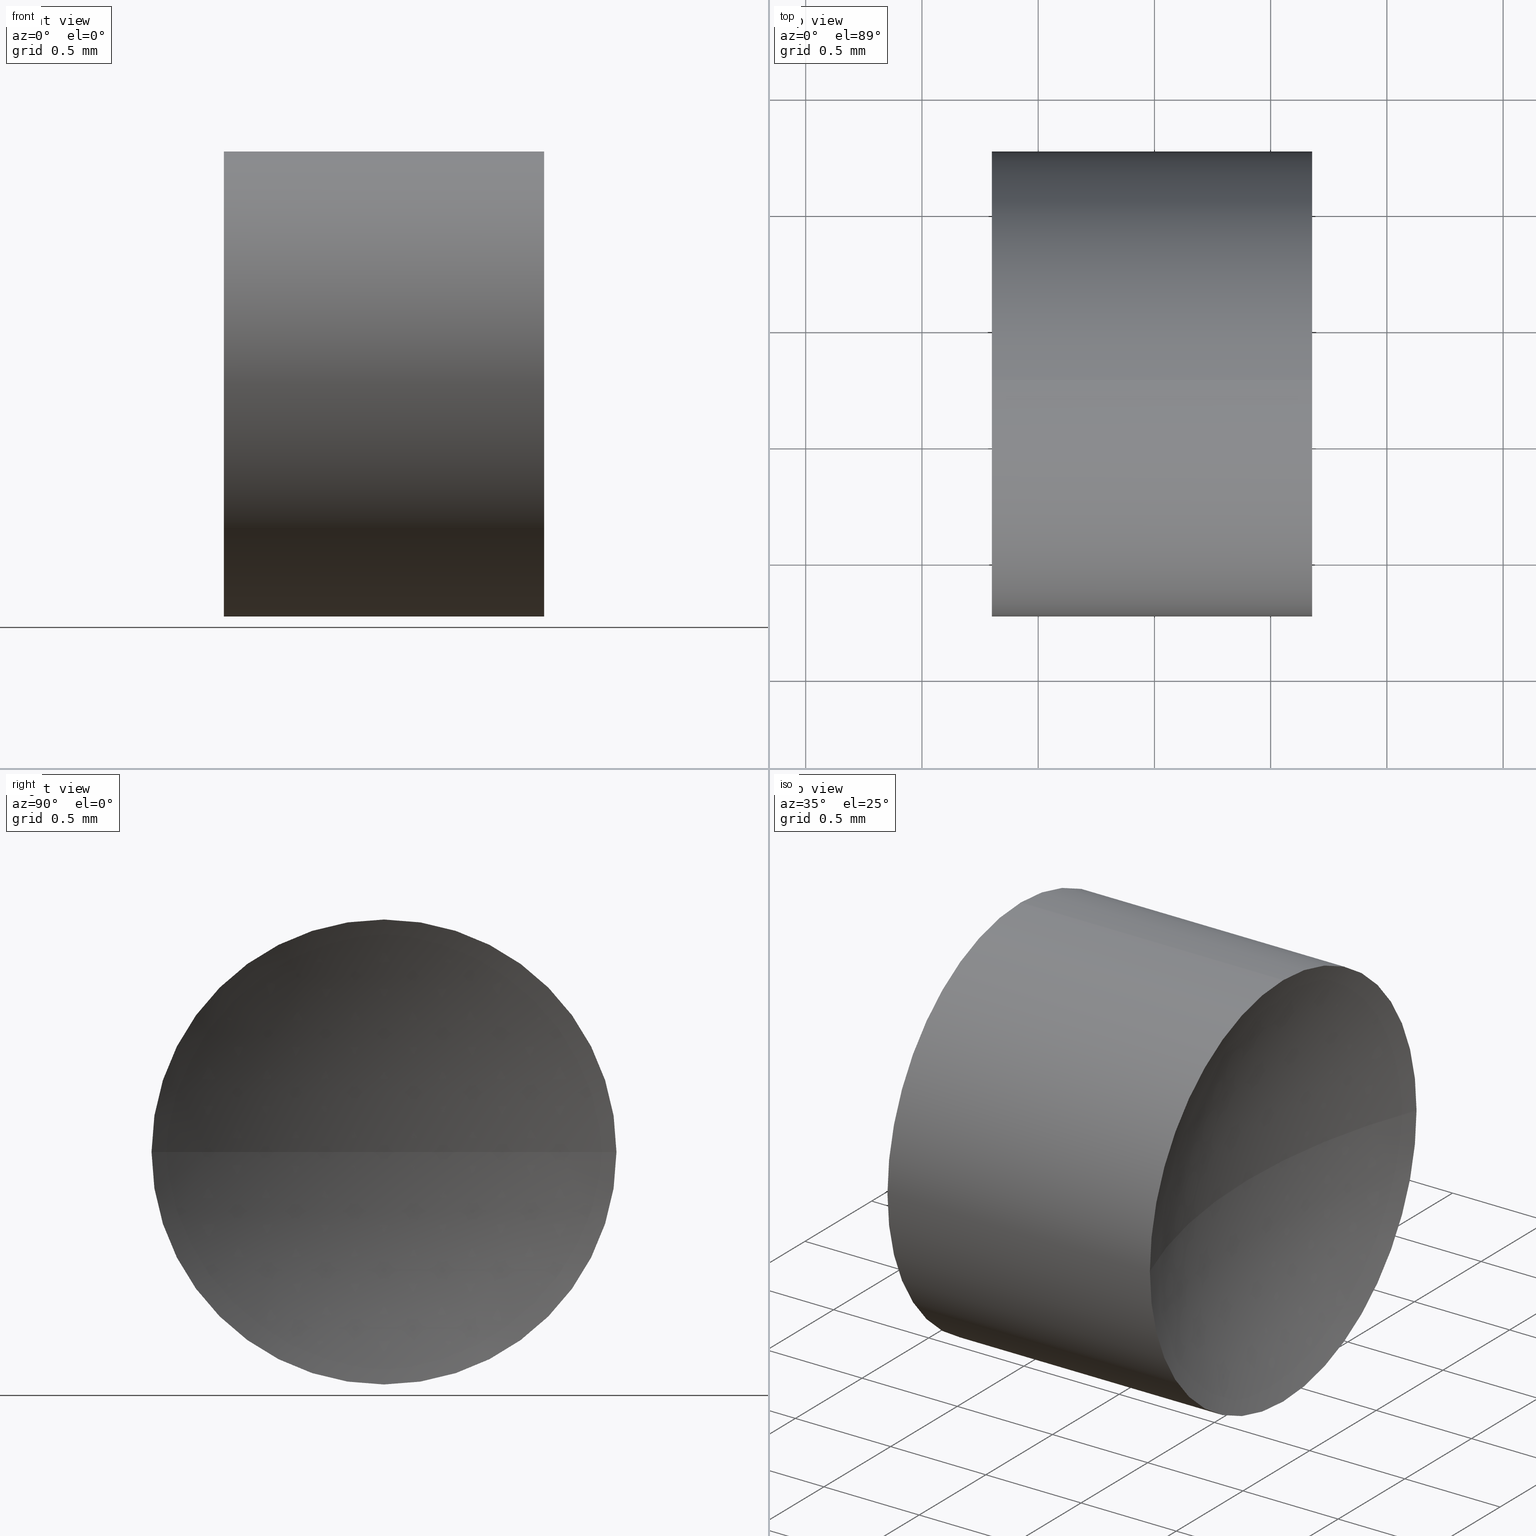
[diagram: canonical four-view strip — front | top / right | iso, engineering-drawing reading convention]
A machine part, canonical four-view strip (front | top / right | iso — engineering-drawing reading convention). The complete STEP part file that produces these views, byte-faithful:
ISO-10303-21;
HEADER;
FILE_DESCRIPTION (( 'STEP AP214' ),
    '1' );
FILE_NAME ('130001.STEP',
    '2019-06-28T01:58:39',
    ( '' ),
    ( '' ),
    'SwSTEP 2.0',
    'SolidWorks 2016',
    '' );
FILE_SCHEMA (( 'AUTOMOTIVE_DESIGN' ));
ENDSEC;

DATA;
#1 = AXIS2_PLACEMENT_3D ( 'NONE', #189, #190, #106 ) ;
#2 = VERTEX_POINT ( 'NONE', #187 ) ;
#3 = DIRECTION ( 'NONE',  ( 0.0000000000000000000, 1.000000000000000000, 0.0000000000000000000 ) ) ;
#4 = CARTESIAN_POINT ( 'NONE',  ( 2.749613268749068000, 3.261130143649369800, 0.0000000000000000000 ) ) ;
#5 = DIRECTION ( 'NONE',  ( 0.0000000000000000000, 0.0000000000000000000, -1.000000000000000000 ) ) ;
#6 = DIRECTION ( 'NONE',  ( -1.000000000000000000, -0.0000000000000000000, -0.0000000000000000000 ) ) ;
#7 = ORIENTED_EDGE ( 'NONE', *, *, #191, .T. ) ;
#8 = CARTESIAN_POINT ( 'NONE',  ( 6.678613464750645400, 3.261130143649369800, 0.0000000000000000000 ) ) ;
#9 = AXIS2_PLACEMENT_3D ( 'NONE', #38, #39, #20 ) ;
#10 = DIRECTION ( 'NONE',  ( 0.0000000000000000000, 0.0000000000000000000, 1.000000000000000000 ) ) ;
#11 = CARTESIAN_POINT ( 'NONE',  ( 9.229613268749068000, 3.261130143649370700, 0.0000000000000000000 ) ) ;
#12 = ORIENTED_EDGE ( 'NONE', *, *, #208, .F. ) ;
#13 = PRESENTATION_LAYER_ASSIGNMENT (  '', '', ( #53 ) ) ;
#14 = EDGE_LOOP ( 'NONE', ( #167, #225, #154, #50 ) ) ;
#15 = AXIS2_PLACEMENT_3D ( 'NONE', #177, #147, #77 ) ;
#16 = ORIENTED_EDGE ( 'NONE', *, *, #74, .F. ) ;
#17 = VECTOR ( 'NONE', #169, 1000.000000000000000 ) ;
#18 = DIRECTION ( 'NONE',  ( 0.0000000000000000000, 0.0000000000000000000, 1.000000000000000000 ) ) ;
#19 = CARTESIAN_POINT ( 'NONE',  ( 6.678613464750645400, 2.261130143649369400, 0.0000000000000000000 ) ) ;
#20 = DIRECTION ( 'NONE',  ( -1.000000000000000000, 0.0000000000000000000, 0.0000000000000000000 ) ) ;
#21 = MECHANICAL_DESIGN_GEOMETRIC_PRESENTATION_REPRESENTATION (  '', ( #53 ), #49 ) ;
#22 = CIRCLE ( 'NONE', #194, 2.739999999999997500 ) ;
#23 =( NAMED_UNIT ( * ) PLANE_ANGLE_UNIT ( ) SI_UNIT ( $, .RADIAN. ) );
#24 =( LENGTH_UNIT ( ) NAMED_UNIT ( * ) SI_UNIT ( .MILLI., .METRE. ) );
#25 = DIRECTION ( 'NONE',  ( -1.000000000000000000, -0.0000000000000000000, -0.0000000000000000000 ) ) ;
#26 = DIRECTION ( 'NONE',  ( 1.000000000000000000, 0.0000000000000000000, 0.0000000000000000000 ) ) ;
#27 = ORIENTED_EDGE ( 'NONE', *, *, #123, .F. ) ;
#28 = APPLICATION_CONTEXT ( 'automotive_design' ) ;
#29 = PRESENTATION_STYLE_ASSIGNMENT (( #195 ) ) ;
#30 = ORIENTED_EDGE ( 'NONE', *, *, #200, .F. ) ;
#31 = ADVANCED_FACE ( 'NONE', ( #157 ), #85, .T. ) ;
#32 = FACE_OUTER_BOUND ( 'NONE', #91, .T. ) ;
#33 = EDGE_CURVE ( 'NONE', #142, #37, #76, .T. ) ;
#34 = EDGE_LOOP ( 'NONE', ( #27, #61, #114, #104 ) ) ;
#35 = AXIS2_PLACEMENT_3D ( 'NONE', #4, #215, #108 ) ;
#36 = DIRECTION ( 'NONE',  ( -1.000000000000000000, -0.0000000000000000000, -0.0000000000000000000 ) ) ;
#37 = VERTEX_POINT ( 'NONE', #72 ) ;
#38 = CARTESIAN_POINT ( 'NONE',  ( 9.229613268749068000, 3.261130143649370700, 0.0000000000000000000 ) ) ;
#39 = DIRECTION ( 'NONE',  ( 0.0000000000000000000, 0.0000000000000000000, -1.000000000000000000 ) ) ;
#40 = CARTESIAN_POINT ( 'NONE',  ( 2.749613268749068000, 3.261130143649369800, 0.0000000000000000000 ) ) ;
#41 = APPLICATION_PROTOCOL_DEFINITION ( 'draft international standard', 'automotive_design', 1998, #28 ) ;
#42 = DIRECTION ( 'NONE',  ( -1.000000000000000000, -0.0000000000000000000, -0.0000000000000000000 ) ) ;
#43 = CARTESIAN_POINT ( 'NONE',  ( 0.0000000000000000000, 0.0000000000000000000, 0.0000000000000000000 ) ) ;
#44 = EDGE_CURVE ( 'NONE', #37, #2, #206, .T. ) ;
#45 =( NAMED_UNIT ( * ) PLANE_ANGLE_UNIT ( ) SI_UNIT ( $, .RADIAN. ) );
#46 = FILL_AREA_STYLE ('',( #132 ) ) ;
#47 = CARTESIAN_POINT ( 'NONE',  ( 5.306232639267102900, 3.261130143649369800, 1.000000000000000400 ) ) ;
#48 = SPHERICAL_SURFACE ( 'NONE', #140, 2.739999999999997500 ) ;
#49 =( GEOMETRIC_REPRESENTATION_CONTEXT ( 3 ) GLOBAL_UNCERTAINTY_ASSIGNED_CONTEXT ( ( #203 ) ) GLOBAL_UNIT_ASSIGNED_CONTEXT ( ( #176, #23, #109 ) ) REPRESENTATION_CONTEXT ( 'NONE', 'WORKASPACE' ) );
#50 = ORIENTED_EDGE ( 'NONE', *, *, #44, .T. ) ;
#51 =( GEOMETRIC_REPRESENTATION_CONTEXT ( 3 ) GLOBAL_UNCERTAINTY_ASSIGNED_CONTEXT ( ( #79 ) ) GLOBAL_UNIT_ASSIGNED_CONTEXT ( ( #64, #96, #129 ) ) REPRESENTATION_CONTEXT ( 'NONE', 'WORKASPACE' ) );
#52 = ADVANCED_FACE ( 'NONE', ( #32 ), #126, .F. ) ;
#53 = STYLED_ITEM ( 'NONE', ( #29 ), #63 ) ;
#54 = ORIENTED_EDGE ( 'NONE', *, *, #200, .T. ) ;
#55 = EDGE_CURVE ( 'NONE', #100, #184, #161, .T. ) ;
#56 = CLOSED_SHELL ( 'NONE', ( #31, #102, #226, #69, #52, #171 ) ) ;
#57 = STYLED_ITEM ( 'NONE', ( #207 ), #178 ) ;
#58 = CARTESIAN_POINT ( 'NONE',  ( 6.678613464750645400, 3.261130143649369800, -1.000000000000001300 ) ) ;
#59 = EDGE_CURVE ( 'NONE', #145, #2, #201, .T. ) ;
#60 = CARTESIAN_POINT ( 'NONE',  ( 5.300613072747492700, 3.261130143649369800, 0.0000000000000000000 ) ) ;
#61 = ORIENTED_EDGE ( 'NONE', *, *, #59, .T. ) ;
#62 = DIRECTION ( 'NONE',  ( 1.000000000000000000, 0.0000000000000000000, 0.0000000000000000000 ) ) ;
#63 = MANIFOLD_SOLID_BREP ( '��ת1', #56 ) ;
#64 =( LENGTH_UNIT ( ) NAMED_UNIT ( * ) SI_UNIT ( .MILLI., .METRE. ) );
#65 = SHAPE_DEFINITION_REPRESENTATION ( #93, #178 ) ;
#66 = PRODUCT_DEFINITION ( 'δ֪', '', #231, #141 ) ;
#67 = COLOUR_RGB ( '',1.000000000000000000, 1.000000000000000000, 1.000000000000000000 ) ;
#68 = LINE ( 'NONE', #47, #17 ) ;
#69 = ADVANCED_FACE ( 'NONE', ( #83 ), #170, .F. ) ;
#70 = ORIENTED_EDGE ( 'NONE', *, *, #228, .F. ) ;
#71 = ORIENTED_EDGE ( 'NONE', *, *, #228, .T. ) ;
#72 = CARTESIAN_POINT ( 'NONE',  ( 5.300613072747492700, 3.261130143649369800, -1.000000000000000400 ) ) ;
#73 = CARTESIAN_POINT ( 'NONE',  ( 2.749613268749068000, 3.261130143649369800, 0.0000000000000000000 ) ) ;
#74 = EDGE_CURVE ( 'NONE', #100, #175, #214, .T. ) ;
#75 = COLOUR_RGB ( '',1.000000000000000000, 1.000000000000000000, 1.000000000000000000 ) ;
#76 = CIRCLE ( 'NONE', #1, 1.000000000000000400 ) ;
#77 = DIRECTION ( 'NONE',  ( 0.0000000000000000000, 0.0000000000000000000, 1.000000000000000000 ) ) ;
#78 = DIRECTION ( 'NONE',  ( -1.000000000000000000, -0.0000000000000000000, -0.0000000000000000000 ) ) ;
#79 = UNCERTAINTY_MEASURE_WITH_UNIT (LENGTH_MEASURE( 1.000000000000000100E-005 ), #64, 'distance_accuracy_value', 'NONE');
#80 = CARTESIAN_POINT ( 'NONE',  ( 6.678613464750645400, 3.261130143649369800, 0.0000000000000000000 ) ) ;
#81 = DIRECTION ( 'NONE',  ( 0.0000000000000000000, -1.000000000000000000, -1.224646799147353200E-016 ) ) ;
#82 = VERTEX_POINT ( 'NONE', #94 ) ;
#83 = FACE_OUTER_BOUND ( 'NONE', #14, .T. ) ;
#84 = PRODUCT_RELATED_PRODUCT_CATEGORY ( 'part', '', ( #139 ) ) ;
#85 = CYLINDRICAL_SURFACE ( 'NONE', #174, 1.000000000000000400 ) ;
#86 = CIRCLE ( 'NONE', #153, 1.000000000000000400 ) ;
#87 = VERTEX_POINT ( 'NONE', #58 ) ;
#88 = ORIENTED_EDGE ( 'NONE', *, *, #74, .T. ) ;
#89 = FACE_OUTER_BOUND ( 'NONE', #34, .T. ) ;
#90 = CARTESIAN_POINT ( 'NONE',  ( 5.300613072747492700, 3.261130143649369800, 0.0000000000000000000 ) ) ;
#91 = EDGE_LOOP ( 'NONE', ( #121, #220, #138, #88 ) ) ;
#92 = DIRECTION ( 'NONE',  ( 0.0000000000000000000, -1.000000000000000000, 0.0000000000000000000 ) ) ;
#93 = PRODUCT_DEFINITION_SHAPE ( 'NONE', 'NONE',  #66 ) ;
#94 = CARTESIAN_POINT ( 'NONE',  ( 5.300613072747492700, 3.261130143649369800, 1.000000000000000400 ) ) ;
#95 = ORIENTED_EDGE ( 'NONE', *, *, #44, .F. ) ;
#96 =( NAMED_UNIT ( * ) PLANE_ANGLE_UNIT ( ) SI_UNIT ( $, .RADIAN. ) );
#97 = CARTESIAN_POINT ( 'NONE',  ( 6.678613464750645400, 3.261130143649369800, 1.000000000000001300 ) ) ;
#98 = DIRECTION ( 'NONE',  ( 0.0000000000000000000, 1.000000000000000000, 0.0000000000000000000 ) ) ;
#99 = EDGE_LOOP ( 'NONE', ( #54, #227, #180, #173, #70, #232 ) ) ;
#100 = VERTEX_POINT ( 'NONE', #19 ) ;
#101 = UNCERTAINTY_MEASURE_WITH_UNIT (LENGTH_MEASURE( 1.000000000000000100E-005 ), #24, 'distance_accuracy_value', 'NONE');
#102 = ADVANCED_FACE ( 'NONE', ( #118 ), #48, .F. ) ;
#103 = DIRECTION ( 'NONE',  ( -1.000000000000000000, -0.0000000000000000000, -0.0000000000000000000 ) ) ;
#104 = ORIENTED_EDGE ( 'NONE', *, *, #107, .T. ) ;
#105 = DIRECTION ( 'NONE',  ( -1.000000000000000000, -0.0000000000000000000, -0.0000000000000000000 ) ) ;
#106 = DIRECTION ( 'NONE',  ( 0.0000000000000000000, 0.0000000000000000000, 1.000000000000000000 ) ) ;
#107 = EDGE_CURVE ( 'NONE', #82, #142, #211, .T. ) ;
#108 = DIRECTION ( 'NONE',  ( 0.0000000000000000000, 1.000000000000000000, 1.224646799147353000E-016 ) ) ;
#109 =( NAMED_UNIT ( * ) SI_UNIT ( $, .STERADIAN. ) SOLID_ANGLE_UNIT ( ) );
#110 = DIRECTION ( 'NONE',  ( 0.0000000000000000000, 0.0000000000000000000, 1.000000000000000000 ) ) ;
#111 = FILL_AREA_STYLE_COLOUR ( '', #67 ) ;
#112 = APPLICATION_CONTEXT ( 'automotive_design' ) ;
#113 = DIRECTION ( 'NONE',  ( -1.000000000000000000, -0.0000000000000000000, -0.0000000000000000000 ) ) ;
#114 = ORIENTED_EDGE ( 'NONE', *, *, #208, .T. ) ;
#115 = CIRCLE ( 'NONE', #163, 1.000000000000001300 ) ;
#116 = AXIS2_PLACEMENT_3D ( 'NONE', #43, #150, #26 ) ;
#117 = SURFACE_STYLE_FILL_AREA ( #130 ) ;
#118 = FACE_OUTER_BOUND ( 'NONE', #125, .T. ) ;
#119 = AXIS2_PLACEMENT_3D ( 'NONE', #212, #36, #160 ) ;
#120 = EDGE_CURVE ( 'NONE', #87, #37, #155, .T. ) ;
#121 = ORIENTED_EDGE ( 'NONE', *, *, #224, .F. ) ;
#122 = MECHANICAL_DESIGN_GEOMETRIC_PRESENTATION_REPRESENTATION (  '', ( #57 ), #158 ) ;
#123 = EDGE_CURVE ( 'NONE', #145, #142, #222, .T. ) ;
#124 = CIRCLE ( 'NONE', #119, 1.000000000000001300 ) ;
#125 = EDGE_LOOP ( 'NONE', ( #30, #229, #16, #185 ) ) ;
#126 = SPHERICAL_SURFACE ( 'NONE', #213, 2.739999999999997500 ) ;
#127 = SURFACE_SIDE_STYLE ('',( #117 ) ) ;
#128 = AXIS2_PLACEMENT_3D ( 'NONE', #73, #5, #3 ) ;
#129 =( NAMED_UNIT ( * ) SI_UNIT ( $, .STERADIAN. ) SOLID_ANGLE_UNIT ( ) );
#130 = FILL_AREA_STYLE ('',( #111 ) ) ;
#131 = AXIS2_PLACEMENT_3D ( 'NONE', #148, #42, #165 ) ;
#132 = FILL_AREA_STYLE_COLOUR ( '', #75 ) ;
#133 = DIRECTION ( 'NONE',  ( 0.0000000000000000000, -1.224646799147353200E-016, 1.000000000000000000 ) ) ;
#134 =( NAMED_UNIT ( * ) SI_UNIT ( $, .STERADIAN. ) SOLID_ANGLE_UNIT ( ) );
#135 = AXIS2_PLACEMENT_3D ( 'NONE', #90, #103, #230 ) ;
#136 = CIRCLE ( 'NONE', #151, 1.000000000000001300 ) ;
#137 = SURFACE_STYLE_FILL_AREA ( #46 ) ;
#138 = ORIENTED_EDGE ( 'NONE', *, *, #55, .F. ) ;
#139 = PRODUCT ( '130001', '130001', '', ( #223 ) ) ;
#140 = AXIS2_PLACEMENT_3D ( 'NONE', #146, #193, #92 ) ;
#141 = PRODUCT_DEFINITION_CONTEXT ( 'detailed design', #28, 'design' ) ;
#142 = VERTEX_POINT ( 'NONE', #179 ) ;
#143 = DIRECTION ( 'NONE',  ( 0.0000000000000000000, 0.0000000000000000000, 1.000000000000000000 ) ) ;
#144 = DIRECTION ( 'NONE',  ( 0.0000000000000000000, -1.000000000000000000, 0.0000000000000000000 ) ) ;
#145 = VERTEX_POINT ( 'NONE', #218 ) ;
#146 = CARTESIAN_POINT ( 'NONE',  ( 9.229613268749068000, 3.261130143649370700, 0.0000000000000000000 ) ) ;
#147 = DIRECTION ( 'NONE',  ( -1.000000000000000000, -0.0000000000000000000, -0.0000000000000000000 ) ) ;
#148 = CARTESIAN_POINT ( 'NONE',  ( 5.306232639267102900, 3.261130143649369800, 0.0000000000000000000 ) ) ;
#149 = CARTESIAN_POINT ( 'NONE',  ( 6.678613464750645400, 4.261130143649371100, 1.224646799147353900E-016 ) ) ;
#150 = DIRECTION ( 'NONE',  ( 0.0000000000000000000, 0.0000000000000000000, 1.000000000000000000 ) ) ;
#151 = AXIS2_PLACEMENT_3D ( 'NONE', #8, #25, #10 ) ;
#152 = VERTEX_POINT ( 'NONE', #149 ) ;
#153 = AXIS2_PLACEMENT_3D ( 'NONE', #199, #113, #219 ) ;
#154 = ORIENTED_EDGE ( 'NONE', *, *, #33, .T. ) ;
#155 = LINE ( 'NONE', #216, #192 ) ;
#156 = EDGE_CURVE ( 'NONE', #184, #152, #124, .T. ) ;
#157 = FACE_OUTER_BOUND ( 'NONE', #99, .T. ) ;
#158 =( GEOMETRIC_REPRESENTATION_CONTEXT ( 3 ) GLOBAL_UNCERTAINTY_ASSIGNED_CONTEXT ( ( #101 ) ) GLOBAL_UNIT_ASSIGNED_CONTEXT ( ( #24, #45, #134 ) ) REPRESENTATION_CONTEXT ( 'NONE', 'WORKASPACE' ) );
#159 = CARTESIAN_POINT ( 'NONE',  ( 9.229613268749068000, 3.261130143649370700, 0.0000000000000000000 ) ) ;
#160 = DIRECTION ( 'NONE',  ( 0.0000000000000000000, 0.0000000000000000000, 1.000000000000000000 ) ) ;
#161 = CIRCLE ( 'NONE', #15, 1.000000000000001300 ) ;
#162 = FACE_OUTER_BOUND ( 'NONE', #172, .T. ) ;
#163 = AXIS2_PLACEMENT_3D ( 'NONE', #80, #196, #182 ) ;
#164 = DIRECTION ( 'NONE',  ( 0.0000000000000000000, 0.0000000000000000000, 1.000000000000000000 ) ) ;
#165 = DIRECTION ( 'NONE',  ( 0.0000000000000000000, 0.0000000000000000000, 1.000000000000000000 ) ) ;
#166 = DIRECTION ( 'NONE',  ( 0.0000000000000000000, 0.0000000000000000000, -1.000000000000000000 ) ) ;
#167 = ORIENTED_EDGE ( 'NONE', *, *, #59, .F. ) ;
#168 = SURFACE_STYLE_USAGE ( .BOTH. , #221 ) ;
#169 = DIRECTION ( 'NONE',  ( -1.000000000000000000, -0.0000000000000000000, -0.0000000000000000000 ) ) ;
#170 = SPHERICAL_SURFACE ( 'NONE', #128, 2.740000000000000200 ) ;
#171 = ADVANCED_FACE ( 'NONE', ( #162 ), #202, .T. ) ;
#172 = EDGE_LOOP ( 'NONE', ( #188, #7, #209, #71, #12, #95 ) ) ;
#173 = ORIENTED_EDGE ( 'NONE', *, *, #107, .F. ) ;
#174 = AXIS2_PLACEMENT_3D ( 'NONE', #210, #105, #143 ) ;
#175 = VERTEX_POINT ( 'NONE', #181 ) ;
#176 =( LENGTH_UNIT ( ) NAMED_UNIT ( * ) SI_UNIT ( .MILLI., .METRE. ) );
#177 = CARTESIAN_POINT ( 'NONE',  ( 6.678613464750645400, 3.261130143649369800, 0.0000000000000000000 ) ) ;
#178 = ADVANCED_BREP_SHAPE_REPRESENTATION ( '130001', ( #63, #116 ), #51 ) ;
#179 = CARTESIAN_POINT ( 'NONE',  ( 5.300613072747492700, 4.261130143649369400, 0.0000000000000000000 ) ) ;
#180 = ORIENTED_EDGE ( 'NONE', *, *, #33, .F. ) ;
#181 = CARTESIAN_POINT ( 'NONE',  ( 6.489613268749069500, 3.261130143649370700, 0.0000000000000000000 ) ) ;
#182 = DIRECTION ( 'NONE',  ( 0.0000000000000000000, 0.0000000000000000000, 1.000000000000000000 ) ) ;
#183 = APPLICATION_PROTOCOL_DEFINITION ( 'draft international standard', 'automotive_design', 1998, #112 ) ;
#184 = VERTEX_POINT ( 'NONE', #97 ) ;
#185 = ORIENTED_EDGE ( 'NONE', *, *, #191, .F. ) ;
#186 = AXIS2_PLACEMENT_3D ( 'NONE', #60, #78, #110 ) ;
#187 = CARTESIAN_POINT ( 'NONE',  ( 5.300613072747492700, 2.261130143649370300, -1.224646799147353000E-016 ) ) ;
#188 = ORIENTED_EDGE ( 'NONE', *, *, #120, .F. ) ;
#189 = CARTESIAN_POINT ( 'NONE',  ( 5.300613072747492700, 3.261130143649369800, 0.0000000000000000000 ) ) ;
#190 = DIRECTION ( 'NONE',  ( -1.000000000000000000, -0.0000000000000000000, -0.0000000000000000000 ) ) ;
#191 = EDGE_CURVE ( 'NONE', #87, #100, #136, .T. ) ;
#192 = VECTOR ( 'NONE', #6, 1000.000000000000000 ) ;
#193 = DIRECTION ( 'NONE',  ( 0.0000000000000000000, 0.0000000000000000000, 1.000000000000000000 ) ) ;
#194 = AXIS2_PLACEMENT_3D ( 'NONE', #11, #133, #81 ) ;
#195 = SURFACE_STYLE_USAGE ( .BOTH. , #127 ) ;
#196 = DIRECTION ( 'NONE',  ( -1.000000000000000000, -0.0000000000000000000, -0.0000000000000000000 ) ) ;
#197 = AXIS2_PLACEMENT_3D ( 'NONE', #40, #164, #62 ) ;
#198 = CARTESIAN_POINT ( 'NONE',  ( 2.749613268749068000, 3.261130143649369800, 0.0000000000000000000 ) ) ;
#199 = CARTESIAN_POINT ( 'NONE',  ( 5.300613072747492700, 3.261130143649369800, 0.0000000000000000000 ) ) ;
#200 = EDGE_CURVE ( 'NONE', #152, #87, #115, .T. ) ;
#201 = CIRCLE ( 'NONE', #35, 2.740000000000000700 ) ;
#202 = CYLINDRICAL_SURFACE ( 'NONE', #131, 1.000000000000000400 ) ;
#203 = UNCERTAINTY_MEASURE_WITH_UNIT (LENGTH_MEASURE( 1.000000000000000100E-005 ), #176, 'distance_accuracy_value', 'NONE');
#204 = SPHERICAL_SURFACE ( 'NONE', #217, 2.740000000000000200 ) ;
#205 = PRESENTATION_LAYER_ASSIGNMENT (  '', '', ( #57 ) ) ;
#206 = CIRCLE ( 'NONE', #135, 1.000000000000000400 ) ;
#207 = PRESENTATION_STYLE_ASSIGNMENT (( #168 ) ) ;
#208 = EDGE_CURVE ( 'NONE', #2, #82, #86, .T. ) ;
#209 = ORIENTED_EDGE ( 'NONE', *, *, #55, .T. ) ;
#210 = CARTESIAN_POINT ( 'NONE',  ( 5.306232639267102900, 3.261130143649369800, 0.0000000000000000000 ) ) ;
#211 = CIRCLE ( 'NONE', #186, 1.000000000000000400 ) ;
#212 = CARTESIAN_POINT ( 'NONE',  ( 6.678613464750645400, 3.261130143649369800, 0.0000000000000000000 ) ) ;
#213 = AXIS2_PLACEMENT_3D ( 'NONE', #159, #18, #144 ) ;
#214 = CIRCLE ( 'NONE', #9, 2.739999999999997500 ) ;
#215 = DIRECTION ( 'NONE',  ( 0.0000000000000000000, 1.224646799147353200E-016, -1.000000000000000000 ) ) ;
#216 = CARTESIAN_POINT ( 'NONE',  ( 5.306232639267102900, 3.261130143649369800, -1.000000000000000400 ) ) ;
#217 = AXIS2_PLACEMENT_3D ( 'NONE', #198, #166, #98 ) ;
#218 = CARTESIAN_POINT ( 'NONE',  ( 5.489613268749067700, 3.261130143649369800, 0.0000000000000000000 ) ) ;
#219 = DIRECTION ( 'NONE',  ( 0.0000000000000000000, 0.0000000000000000000, 1.000000000000000000 ) ) ;
#220 = ORIENTED_EDGE ( 'NONE', *, *, #156, .F. ) ;
#221 = SURFACE_SIDE_STYLE ('',( #137 ) ) ;
#222 = CIRCLE ( 'NONE', #197, 2.740000000000000200 ) ;
#223 = PRODUCT_CONTEXT ( 'NONE', #112, 'mechanical' ) ;
#224 = EDGE_CURVE ( 'NONE', #152, #175, #22, .T. ) ;
#225 = ORIENTED_EDGE ( 'NONE', *, *, #123, .T. ) ;
#226 = ADVANCED_FACE ( 'NONE', ( #89 ), #204, .F. ) ;
#227 = ORIENTED_EDGE ( 'NONE', *, *, #120, .T. ) ;
#228 = EDGE_CURVE ( 'NONE', #184, #82, #68, .T. ) ;
#229 = ORIENTED_EDGE ( 'NONE', *, *, #224, .T. ) ;
#230 = DIRECTION ( 'NONE',  ( 0.0000000000000000000, 0.0000000000000000000, 1.000000000000000000 ) ) ;
#231 = PRODUCT_DEFINITION_FORMATION_WITH_SPECIFIED_SOURCE ( '�κ�', '', #139, .NOT_KNOWN. ) ;
#232 = ORIENTED_EDGE ( 'NONE', *, *, #156, .T. ) ;
ENDSEC;
END-ISO-10303-21;
